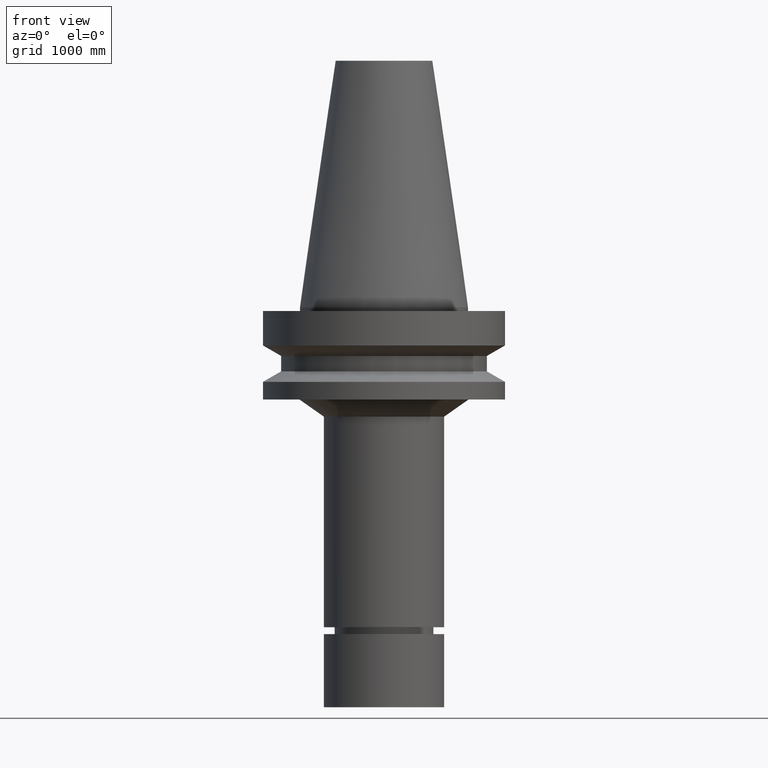
[diagram: clean part render]
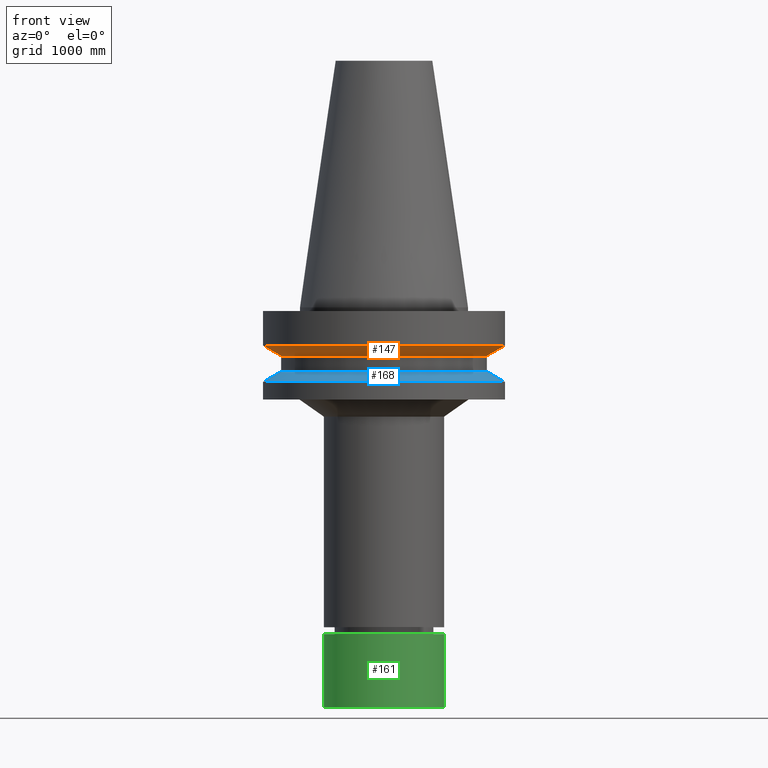
[diagram: same view with three faces highlighted in distinct colors, each labeled with its STEP entity id]
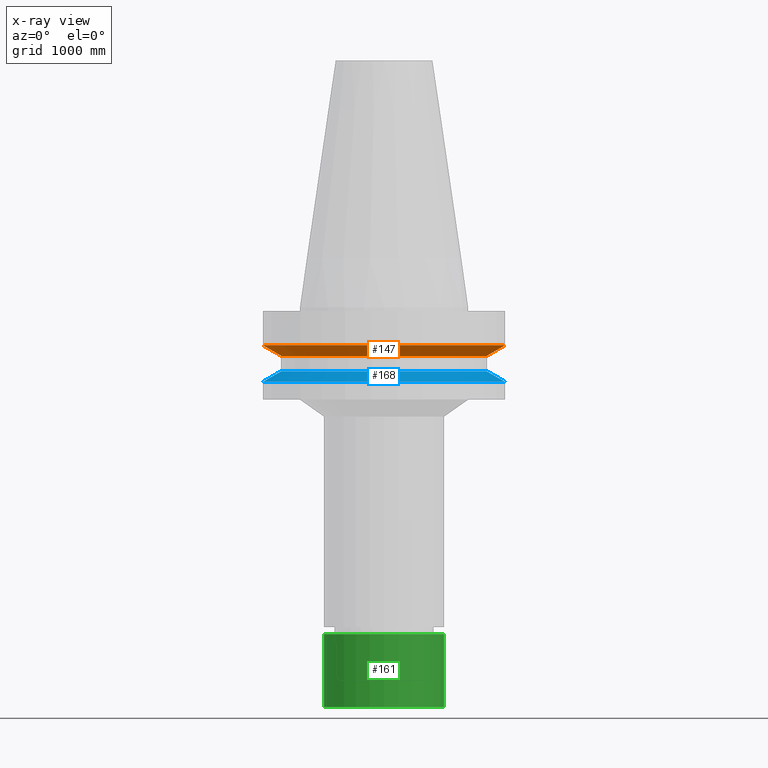
[diagram: x-ray of the same camera — body ghosted, the three highlighted faces saturated]
A machine part, front view with three faces highlighted in distinct colors.
The next image is the same camera in x-ray (body ghosted, the three faces saturated) — at least one of them is partly hidden behind the body in this view.
Their STEP definitions:

[orange] entity #147 — the highlighted conical surface has half-angle 60 deg.
#88=EDGE_CURVE('Unnamed[1]',#222,#222,#223,.T.);
#124=EDGE_CURVE('Unnamed[1]',#278,#278,#279,.T.);
#147=ADVANCED_FACE('Unnamed[1]',(#311,#312),#313,.T.);
#222=VERTEX_POINT('',#403);
#223=CIRCLE('',#404,42.5);
#278=VERTEX_POINT('',#473);
#279=CIRCLE('',#474,50.0);
#311=FACE_BOUND('',#514,.T.);
#312=FACE_BOUND('',#515,.T.);
#313=CONICAL_SURFACE('',#516,46.25,1.04719755108882);
#403=CARTESIAN_POINT('',(1.2264915470779E-015,42.5,-20.03012702));
#404=AXIS2_PLACEMENT_3D('',#604,#605,#606);
#473=CARTESIAN_POINT('',(9.61347737330674E-016,50.0,-15.7));
#474=AXIS2_PLACEMENT_3D('',#668,#669,#670);
#514=EDGE_LOOP('',(#702));
#515=EDGE_LOOP('',(#703));
#516=AXIS2_PLACEMENT_3D('',#704,#705,#706);
#604=CARTESIAN_POINT('',(1.2264915470779E-015,1.63548757589177E-014,-20.03012702));
#605=DIRECTION('',(-6.12323399573677E-017,-2.72265846766253E-017,1.0));
#606=DIRECTION('',(-6.4943002195635E-033,1.0,2.72265846766253E-017));
#668=CARTESIAN_POINT('',(9.61347737330675E-016,1.62369811889471E-014,-15.7));
#669=DIRECTION('',(-6.12323399573677E-017,-2.72265846766671E-017,1.0));
#670=DIRECTION('',(-6.49430021956856E-033,1.0,2.72265846766671E-017));
#702=ORIENTED_EDGE('',*,*,#124,.F.);
#703=ORIENTED_EDGE('',*,*,#88,.T.);
#704=CARTESIAN_POINT('',(1.09391964220429E-015,1.62959284739324E-014,-17.86506351));
#705=DIRECTION('',(-6.12323399573677E-017,-2.72265846766479E-017,1.0));
#706=DIRECTION('',(-6.4943002195643E-033,1.0,2.72265846766479E-017));

[blue] entity #168 — the highlighted conical surface has half-angle 60 deg.
#90=EDGE_CURVE('Unnamed[1]',#225,#225,#226,.T.);
#122=EDGE_CURVE('Unnamed[1]',#275,#275,#276,.T.);
#168=ADVANCED_FACE('Unnamed[1]',(#343,#344),#345,.T.);
#225=VERTEX_POINT('',#407);
#226=CIRCLE('',#408,50.0);
#275=VERTEX_POINT('',#469);
#276=CIRCLE('',#470,42.5);
#343=FACE_BOUND('',#553,.T.);
#344=FACE_BOUND('',#554,.T.);
#345=CONICAL_SURFACE('',#555,46.25,1.04719755108882);
#407=CARTESIAN_POINT('',(1.87983283669119E-015,50.0,-30.7000000000001));
#408=AXIS2_PLACEMENT_3D('',#607,#608,#609);
#469=CARTESIAN_POINT('',(1.61468902694397E-015,42.5,-26.3698729800001));
#470=AXIS2_PLACEMENT_3D('',#665,#666,#667);
#553=EDGE_LOOP('',(#736));
#554=EDGE_LOOP('',(#737));
#555=AXIS2_PLACEMENT_3D('',#738,#739,#740);
#607=CARTESIAN_POINT('',(1.87983283669119E-015,1.66453799590967E-014,-30.7));
#608=DIRECTION('',(-6.12323399573677E-017,-2.72265846766671E-017,1.0));
#609=DIRECTION('',(-6.49430021956856E-033,1.0,2.72265846766671E-017));
#665=CARTESIAN_POINT('',(1.61468902694397E-015,1.6527485389126E-014,-26.3698729800001));
#666=DIRECTION('',(-6.12323399573677E-017,-2.72265846766253E-017,1.0));
#667=DIRECTION('',(-6.4943002195635E-033,1.0,2.72265846766253E-017));
#736=ORIENTED_EDGE('',*,*,#122,.F.);
#737=ORIENTED_EDGE('',*,*,#90,.T.);
#738=CARTESIAN_POINT('',(1.74726093181758E-015,1.65864326741113E-014,-28.5349364900001));
#739=DIRECTION('',(6.12323399573677E-017,2.72265846766479E-017,-1.0));
#740=DIRECTION('',(-6.4943002195643E-033,1.0,2.72265846766479E-017));

[green] entity #161 — the highlighted cylindrical surface (bore or boss wall) has radius 635 mm, axis along (0, 0, -1).
#129=EDGE_CURVE('Unnamed[1]',#285,#285,#286,.T.);
#144=EDGE_CURVE('Unnamed[1]',#307,#307,#308,.T.);
#161=ADVANCED_FACE('Unnamed[1]',(#332,#333),#334,.T.);
#285=VERTEX_POINT('',#482);
#286=CIRCLE('',#483,25.0);
#307=VERTEX_POINT('',#509);
#308=CIRCLE('',#510,25.0);
#332=FACE_BOUND('',#539,.T.);
#333=FACE_BOUND('',#540,.T.);
#334=CYLINDRICAL_SURFACE('',#541,25.0);
#482=CARTESIAN_POINT('',(1.01033360929657E-014,25.0,-165.0));
#483=AXIS2_PLACEMENT_3D('',#676,#677,#678);
#509=CARTESIAN_POINT('',(8.25411942625316E-015,25.0,-134.8));
#510=AXIS2_PLACEMENT_3D('',#698,#699,#700);
#539=EDGE_LOOP('',(#724));
#540=EDGE_LOOP('',(#725));
#541=AXIS2_PLACEMENT_3D('',#726,#727,#728);
#676=CARTESIAN_POINT('',(1.01033360929657E-014,2.03019102811694E-014,-165.0));
#677=DIRECTION('',(6.12323399573677E-017,2.72265846766401E-017,-1.0));
#678=DIRECTION('',(-6.4943002195671E-033,1.0,2.72265846766401E-017));
#698=CARTESIAN_POINT('',(8.25411942625316E-015,1.94796674239349E-014,-134.8));
#699=DIRECTION('',(6.12323399573677E-017,2.72265846766401E-017,-1.0));
#700=DIRECTION('',(-6.4943002195671E-033,1.0,2.72265846766401E-017));
#724=ORIENTED_EDGE('',*,*,#129,.F.);
#725=ORIENTED_EDGE('',*,*,#144,.T.);
#726=CARTESIAN_POINT('',(9.17872775960941E-015,1.98907888525522E-014,-149.9));
#727=DIRECTION('',(6.12323399573677E-017,2.72265846766401E-017,-1.0));
#728=DIRECTION('',(-6.4943002195671E-033,1.0,2.72265846766401E-017));